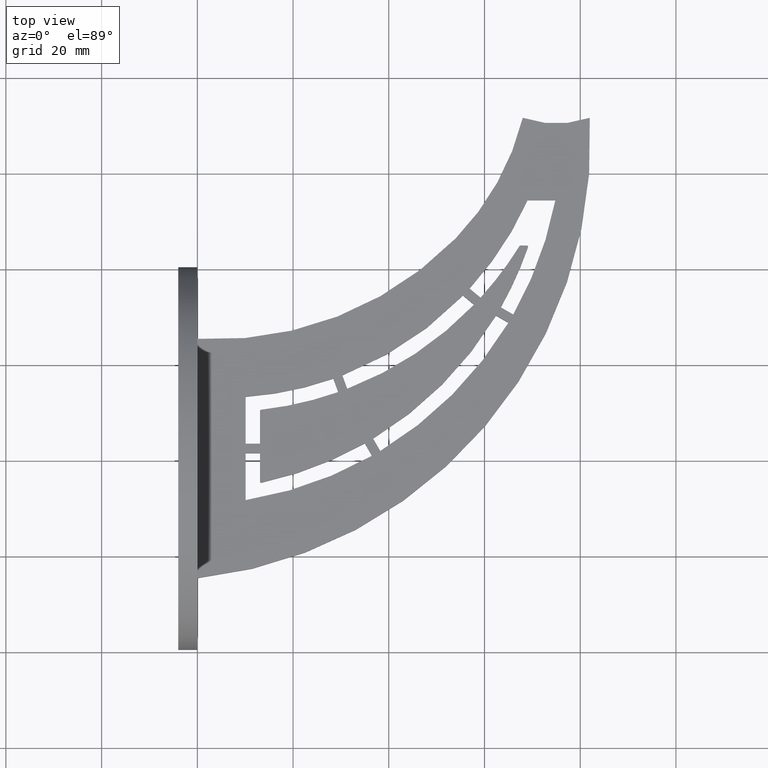
[diagram: clean part render]
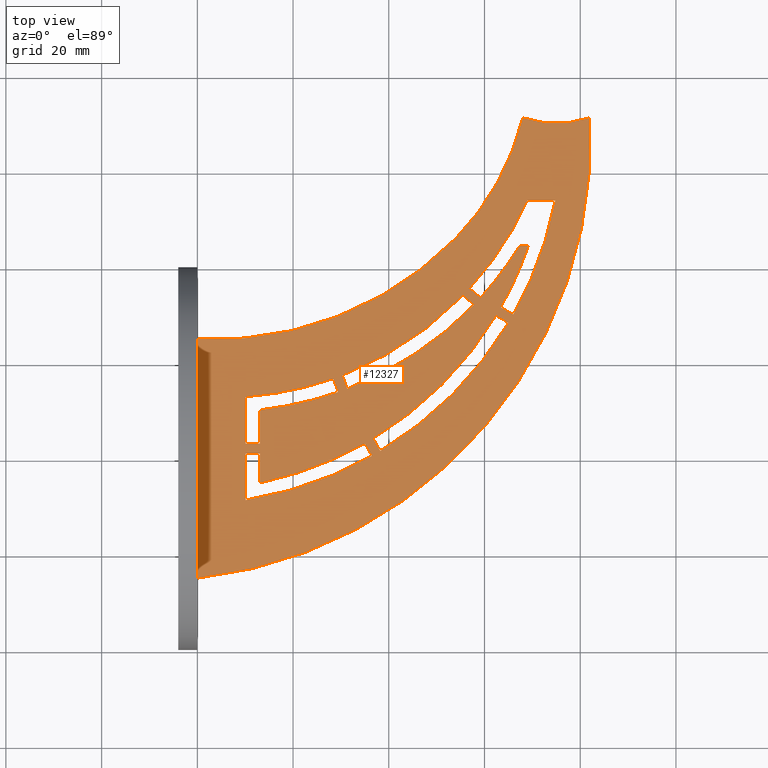
[diagram: same view with one face highlighted and labeled with its STEP entity id]
A machine part, top view. The second image highlights one B-rep face of the part: STEP entity #12327.
In plain terms, the highlighted planar face has unit normal (-0, 0, 1).
Its self-contained STEP definition (entity closure, byte-faithful):
#22 = LINE ( 'NONE', #11182, #9913 ) ;
#104 = CIRCLE ( 'NONE', #9600, 78.50000000000000000 ) ;
#159 = CARTESIAN_POINT ( 'NONE',  ( 13.35000000000025011, 9.933913978657852084, 2.000000000000000000 ) ) ;
#244 = EDGE_CURVE ( 'NONE', #7378, #643, #3690, .T. ) ;
#289 = LINE ( 'NONE', #1100, #12789 ) ;
#306 = ORIENTED_EDGE ( 'NONE', *, *, #6075, .T. ) ;
#407 = AXIS2_PLACEMENT_3D ( 'NONE', #3707, #1597, #13023 ) ;
#453 = VECTOR ( 'NONE', #2502, 999.9999999999998863 ) ;
#458 = AXIS2_PLACEMENT_3D ( 'NONE', #9903, #5889, #6931 ) ;
#484 = LINE ( 'NONE', #4370, #5680 ) ;
#509 = EDGE_CURVE ( 'NONE', #8082, #7496, #9846, .T. ) ;
#592 = DIRECTION ( 'NONE',  ( -0.000000000000000000, 0.000000000000000000, 1.000000000000000000 ) ) ;
#633 = CARTESIAN_POINT ( 'NONE',  ( 74.99999999999998579, 91.20000000000000284, 2.000000000000000000 ) ) ;
#643 = VERTEX_POINT ( 'NONE', #11757 ) ;
#649 = DIRECTION ( 'NONE',  ( -0.000000000000000000, 0.000000000000000000, 1.000000000000000000 ) ) ;
#677 = DIRECTION ( 'NONE',  ( -0.000000000000000000, 0.000000000000000000, 1.000000000000000000 ) ) ;
#716 = DIRECTION ( 'NONE',  ( -0.000000000000000000, 0.000000000000000000, 1.000000000000000000 ) ) ;
#935 = VERTEX_POINT ( 'NONE', #1446 ) ;
#1100 = CARTESIAN_POINT ( 'NONE',  ( 30.43871474060331650, 11.20269202076643822, 2.000000000000000000 ) ) ;
#1176 = VERTEX_POINT ( 'NONE', #9939 ) ;
#1182 = VERTEX_POINT ( 'NONE', #10863 ) ;
#1211 = CARTESIAN_POINT ( 'NONE',  ( 14.61404249810564338, 84.41547426875771976, 2.000000000000000000 ) ) ;
#1221 = VERTEX_POINT ( 'NONE', #6142 ) ;
#1229 = AXIS2_PLACEMENT_3D ( 'NONE', #8597, #592, #1757 ) ;
#1272 = FACE_BOUND ( 'NONE', #11613, .T. ) ;
#1279 = VERTEX_POINT ( 'NONE', #9320 ) ;
#1301 = VERTEX_POINT ( 'NONE', #9599 ) ;
#1318 = VERTEX_POINT ( 'NONE', #12718 ) ;
#1446 = CARTESIAN_POINT ( 'NONE',  ( 62.40149663089107435, 29.86616344181055283, 2.000000000000000000 ) ) ;
#1462 = VECTOR ( 'NONE', #6392, 1000.000000000000114 ) ;
#1483 = VERTEX_POINT ( 'NONE', #11898 ) ;
#1500 = DIRECTION ( 'NONE',  ( 0.7683469671252344257, -0.6400335445189211381, 0.000000000000000000 ) ) ;
#1545 = EDGE_CURVE ( 'NONE', #1318, #935, #10309, .T. ) ;
#1555 = CARTESIAN_POINT ( 'NONE',  ( 28.41691154838158795, 16.69611186267583491, 2.000000000000000000 ) ) ;
#1597 = DIRECTION ( 'NONE',  ( -0.000000000000000000, 0.000000000000000000, 1.000000000000000000 ) ) ;
#1605 = FACE_BOUND ( 'NONE', #8514, .T. ) ;
#1644 = VECTOR ( 'NONE', #7174, 1000.000000000000000 ) ;
#1757 = DIRECTION ( 'NONE',  ( 1.000000000000000000, 0.000000000000000000, 0.000000000000000000 ) ) ;
#1856 = CARTESIAN_POINT ( 'NONE',  ( 68.85196653942389844, 44.50000000000000000, 2.000000000000000000 ) ) ;
#1936 = AXIS2_PLACEMENT_3D ( 'NONE', #1211, #8611, #7494 ) ;
#2001 = ORIENTED_EDGE ( 'NONE', *, *, #12408, .F. ) ;
#2033 = CARTESIAN_POINT ( 'NONE',  ( 81.99999999999997158, 71.18900302333739205, 2.000000000000000000 ) ) ;
#2037 = DIRECTION ( 'NONE',  ( 1.000000000000000000, 0.000000000000000000, 0.000000000000000000 ) ) ;
#2106 = VERTEX_POINT ( 'NONE', #6904 ) ;
#2304 = EDGE_CURVE ( 'NONE', #9242, #12832, #5115, .T. ) ;
#2371 = CARTESIAN_POINT ( 'NONE',  ( 5.180452133363093736, 82.72691493104838401, 2.000000000000000000 ) ) ;
#2427 = LINE ( 'NONE', #13392, #1644 ) ;
#2444 = ORIENTED_EDGE ( 'NONE', *, *, #3830, .T. ) ;
#2502 = DIRECTION ( 'NONE',  ( 0.3453912201917184177, -0.9384587923902019124, 0.000000000000000000 ) ) ;
#2504 = CARTESIAN_POINT ( 'NONE',  ( -2.274320155918185815, 68.81855391245915143, 2.000000000000000000 ) ) ;
#2507 = ORIENTED_EDGE ( 'NONE', *, *, #509, .T. ) ;
#2552 = EDGE_CURVE ( 'NONE', #1176, #5223, #7384, .T. ) ;
#2565 = CARTESIAN_POINT ( 'NONE',  ( -2.274320155918185815, 68.81855391245915143, 2.000000000000000000 ) ) ;
#2642 = CARTESIAN_POINT ( 'NONE',  ( 3.879352446742994065, 94.89242179660072907, 2.000000000000000000 ) ) ;
#2652 = CARTESIAN_POINT ( 'NONE',  ( 69.08826649521368779, 44.16837689730377292, 2.000000000000000000 ) ) ;
#2683 = DIRECTION ( 'NONE',  ( -0.000000000000000000, 0.000000000000000000, 1.000000000000000000 ) ) ;
#2751 = ORIENTED_EDGE ( 'NONE', *, *, #6838, .T. ) ;
#2763 = CARTESIAN_POINT ( 'NONE',  ( 5.180452133363093736, 82.72691493104838401, 2.000000000000000000 ) ) ;
#2797 = DIRECTION ( 'NONE',  ( 1.000000000000000000, 0.000000000000000000, 0.000000000000000000 ) ) ;
#2837 = VERTEX_POINT ( 'NONE', #9109 ) ;
#2928 = ORIENTED_EDGE ( 'NONE', *, *, #8837, .F. ) ;
#2945 = DIRECTION ( 'NONE',  ( -0.000000000000000000, 0.000000000000000000, 1.000000000000000000 ) ) ;
#3131 = AXIS2_PLACEMENT_3D ( 'NONE', #2504, #9746, #3553 ) ;
#3191 = FACE_BOUND ( 'NONE', #6525, .T. ) ;
#3256 = ORIENTED_EDGE ( 'NONE', *, *, #13352, .F. ) ;
#3282 = ORIENTED_EDGE ( 'NONE', *, *, #244, .F. ) ;
#3420 = DIRECTION ( 'NONE',  ( -0.000000000000000000, 0.000000000000000000, 1.000000000000000000 ) ) ;
#3428 = ORIENTED_EDGE ( 'NONE', *, *, #11032, .F. ) ;
#3553 = DIRECTION ( 'NONE',  ( 1.000000000000000000, 0.000000000000000000, 0.000000000000000000 ) ) ;
#3618 = ORIENTED_EDGE ( 'NONE', *, *, #9763, .F. ) ;
#3619 = EDGE_LOOP ( 'NONE', ( #11312, #10101, #11389, #8341, #4020 ) ) ;
#3643 = CARTESIAN_POINT ( 'NONE',  ( 32.31563232537948238, 11.89347446114490836, 2.000000000000000000 ) ) ;
#3690 = CIRCLE ( 'NONE', #1229, 72.99999999999998579 ) ;
#3707 = CARTESIAN_POINT ( 'NONE',  ( 0.000000000000000000, 0.000000000000000000, 2.000000000000000000 ) ) ;
#3789 = CARTESIAN_POINT ( 'NONE',  ( 66.00873501796485243, 30.09292446476082361, 2.000000000000000000 ) ) ;
#3830 = EDGE_CURVE ( 'NONE', #5907, #1318, #12091, .T. ) ;
#3884 = CARTESIAN_POINT ( 'NONE',  ( 63.41057880476433439, 31.59297065384887659, 2.000000000000000000 ) ) ;
#4020 = ORIENTED_EDGE ( 'NONE', *, *, #5819, .F. ) ;
#4075 = CIRCLE ( 'NONE', #12892, 75.50000000277351830 ) ;
#4119 = DIRECTION ( 'NONE',  ( 0.000000000000000000, 1.000000000000000000, -0.000000000000000000 ) ) ;
#4200 = CIRCLE ( 'NONE', #8529, 73.00000000000001421 ) ;
#4242 = LINE ( 'NONE', #10777, #9104 ) ;
#4257 = DIRECTION ( 'NONE',  ( -0.000000000000000000, 0.000000000000000000, 1.000000000000000000 ) ) ;
#4311 = VERTEX_POINT ( 'NONE', #11109 ) ;
#4317 = CARTESIAN_POINT ( 'NONE',  ( 13.10000000000004228, 4.898666193980483286E-13, 2.000000000000000000 ) ) ;
#4327 = LINE ( 'NONE', #4317, #12148 ) ;
#4343 = LINE ( 'NONE', #8729, #10192 ) ;
#4357 = ORIENTED_EDGE ( 'NONE', *, *, #13173, .F. ) ;
#4360 = CARTESIAN_POINT ( 'NONE',  ( 13.10000000000000142, 1.100000000000000311, 2.000000000000000000 ) ) ;
#4370 = CARTESIAN_POINT ( 'NONE',  ( 13.09999999999989306, -4.356155149773243477E-13, 2.000000000000000000 ) ) ;
#4385 = CARTESIAN_POINT ( 'NONE',  ( 56.87206340631109924, 35.52546025000670937, 2.000000000000000000 ) ) ;
#4583 = DIRECTION ( 'NONE',  ( 1.000000000000000000, -5.174308923711817413E-15, 0.000000000000000000 ) ) ;
#4657 = ORIENTED_EDGE ( 'NONE', *, *, #7781, .F. ) ;
#4694 = CARTESIAN_POINT ( 'NONE',  ( 67.51093839320922996, 44.24999999999997868, 2.000000000000000000 ) ) ;
#4695 = VERTEX_POINT ( 'NONE', #6681 ) ;
#4702 = CARTESIAN_POINT ( 'NONE',  ( 36.49999999999999289, 0.5631358385336567851, 2.000000000000000000 ) ) ;
#4712 = EDGE_CURVE ( 'NONE', #6776, #6154, #10428, .T. ) ;
#4735 = DIRECTION ( 'NONE',  ( -0.000000000000000000, 0.000000000000000000, 1.000000000000000000 ) ) ;
#4814 = VECTOR ( 'NONE', #8089, 1000.000000000000000 ) ;
#4844 = CIRCLE ( 'NONE', #7586, 91.99999999999938893 ) ;
#4854 = CIRCLE ( 'NONE', #5952, 70.00000000000002842 ) ;
#4873 = DIRECTION ( 'NONE',  ( 1.000000000000000000, 1.445602896647341382E-16, 0.000000000000000000 ) ) ;
#4912 = ORIENTED_EDGE ( 'NONE', *, *, #5326, .F. ) ;
#5070 = VERTEX_POINT ( 'NONE', #12018 ) ;
#5115 = CIRCLE ( 'NONE', #9448, 75.50000000277351830 ) ;
#5186 = ORIENTED_EDGE ( 'NONE', *, *, #13081, .T. ) ;
#5223 = VERTEX_POINT ( 'NONE', #10541 ) ;
#5232 = AXIS2_PLACEMENT_3D ( 'NONE', #2763, #5815, #5678 ) ;
#5248 = ORIENTED_EDGE ( 'NONE', *, *, #8628, .T. ) ;
#5326 = EDGE_CURVE ( 'NONE', #5888, #1483, #4242, .T. ) ;
#5396 = CARTESIAN_POINT ( 'NONE',  ( 10.09999999999999964, 3.100000000000001865, 2.000000000000000000 ) ) ;
#5410 = VECTOR ( 'NONE', #9825, 1000.000000000000114 ) ;
#5529 = CIRCLE ( 'NONE', #458, 69.99999999999998579 ) ;
#5546 = CARTESIAN_POINT ( 'NONE',  ( 38.22629435678329912, 1.573106303765562597, 2.000000000000000000 ) ) ;
#5557 = CIRCLE ( 'NONE', #1936, 55.00000000000000711 ) ;
#5678 = DIRECTION ( 'NONE',  ( 1.000000000000000000, 0.000000000000000000, 0.000000000000000000 ) ) ;
#5680 = VECTOR ( 'NONE', #7523, 1000.000000000000000 ) ;
#5695 = CARTESIAN_POINT ( 'NONE',  ( -2.274320155918185815, 68.81855391245915143, 2.000000000000000000 ) ) ;
#5698 = CIRCLE ( 'NONE', #6471, 78.49999999999998579 ) ;
#5724 = AXIS2_PLACEMENT_3D ( 'NONE', #633, #677, #9995 ) ;
#5759 = DIRECTION ( 'NONE',  ( 0.7683469671252389777, -0.6400335445189156980, 0.000000000000000000 ) ) ;
#5774 = AXIS2_PLACEMENT_3D ( 'NONE', #11148, #9134, #2037 ) ;
#5815 = DIRECTION ( 'NONE',  ( -0.000000000000000000, 0.000000000000000000, 1.000000000000000000 ) ) ;
#5819 = EDGE_CURVE ( 'NONE', #8285, #2106, #5557, .T. ) ;
#5820 = DIRECTION ( 'NONE',  ( 1.000000000000000000, 0.000000000000000000, 0.000000000000000000 ) ) ;
#5888 = VERTEX_POINT ( 'NONE', #4385 ) ;
#5889 = DIRECTION ( 'NONE',  ( -0.000000000000000000, 0.000000000000000000, 1.000000000000000000 ) ) ;
#5907 = VERTEX_POINT ( 'NONE', #5546 ) ;
#5952 = AXIS2_PLACEMENT_3D ( 'NONE', #9011, #6853, #7874 ) ;
#5993 = DIRECTION ( 'NONE',  ( 1.000000000000000000, 0.000000000000000000, 0.000000000000000000 ) ) ;
#6021 = EDGE_CURVE ( 'NONE', #5907, #12602, #10922, .T. ) ;
#6075 = EDGE_CURVE ( 'NONE', #5070, #6154, #4075, .T. ) ;
#6136 = EDGE_CURVE ( 'NONE', #935, #12602, #7167, .T. ) ;
#6142 = CARTESIAN_POINT ( 'NONE',  ( 57.81112312110035845, 32.14023218370323320, 2.000000000000000000 ) ) ;
#6154 = VERTEX_POINT ( 'NONE', #6990 ) ;
#6161 = CIRCLE ( 'NONE', #12034, 0.2500000000000366374 ) ;
#6189 = ORIENTED_EDGE ( 'NONE', *, *, #11816, .F. ) ;
#6333 = EDGE_CURVE ( 'NONE', #12832, #12522, #11072, .T. ) ;
#6392 = DIRECTION ( 'NONE',  ( 0.8660254037844340447, -0.5000000000000078826, 0.000000000000000000 ) ) ;
#6446 = DIRECTION ( 'NONE',  ( -3.739439842733181748E-14, 1.000000000000000000, 0.000000000000000000 ) ) ;
#6469 = DIRECTION ( 'NONE',  ( 1.000000000000000000, 0.000000000000000000, 0.000000000000000000 ) ) ;
#6471 = AXIS2_PLACEMENT_3D ( 'NONE', #12864, #8487, #9613 ) ;
#6525 = EDGE_LOOP ( 'NONE', ( #3256, #6189, #5248, #9755 ) ) ;
#6553 = DIRECTION ( 'NONE',  ( 1.000000000000000000, 0.000000000000000000, 0.000000000000000000 ) ) ;
#6651 = CARTESIAN_POINT ( 'NONE',  ( 2.302567471051777078E-13, 44.50000000000035527, 2.000000000000000000 ) ) ;
#6661 = ORIENTED_EDGE ( 'NONE', *, *, #7726, .F. ) ;
#6681 = CARTESIAN_POINT ( 'NONE',  ( 1.998587412948803633E-12, 24.99999999999992539, 2.000000000000000000 ) ) ;
#6743 = ORIENTED_EDGE ( 'NONE', *, *, #9391, .F. ) ;
#6776 = VERTEX_POINT ( 'NONE', #4702 ) ;
#6812 = CARTESIAN_POINT ( 'NONE',  ( -4.481368979606760207E-16, 3.100000000000000977, 2.000000000000000000 ) ) ;
#6838 = EDGE_CURVE ( 'NONE', #10904, #1301, #22, .T. ) ;
#6853 = DIRECTION ( 'NONE',  ( -0.000000000000000000, 0.000000000000000000, 1.000000000000000000 ) ) ;
#6904 = CARTESIAN_POINT ( 'NONE',  ( 68.00000000000000000, 71.18900302333739205, 2.000000000000000000 ) ) ;
#6916 = DIRECTION ( 'NONE',  ( -0.000000000000000000, 0.000000000000000000, 1.000000000000000000 ) ) ;
#6931 = DIRECTION ( 'NONE',  ( 1.000000000000000000, 0.000000000000000000, 0.000000000000000000 ) ) ;
#6990 = CARTESIAN_POINT ( 'NONE',  ( 34.99996197542167664, 3.161277910388546442, 2.000000000000000000 ) ) ;
#7167 = LINE ( 'NONE', #8999, #12057 ) ;
#7174 = DIRECTION ( 'NONE',  ( 1.000000000000000000, 0.000000000000000000, 0.000000000000000000 ) ) ;
#7251 = VECTOR ( 'NONE', #4873, 1000.000000000000000 ) ;
#7270 = VERTEX_POINT ( 'NONE', #7824 ) ;
#7378 = VERTEX_POINT ( 'NONE', #12377 ) ;
#7384 = LINE ( 'NONE', #9323, #7873 ) ;
#7391 = ORIENTED_EDGE ( 'NONE', *, *, #1545, .T. ) ;
#7436 = LINE ( 'NONE', #9293, #1462 ) ;
#7494 = DIRECTION ( 'NONE',  ( 1.000000000000000000, 0.000000000000000000, 0.000000000000000000 ) ) ;
#7496 = VERTEX_POINT ( 'NONE', #10678 ) ;
#7514 = ORIENTED_EDGE ( 'NONE', *, *, #4712, .F. ) ;
#7523 = DIRECTION ( 'NONE',  ( 3.325309274636090619E-14, 1.000000000000000000, 0.000000000000000000 ) ) ;
#7586 = AXIS2_PLACEMENT_3D ( 'NONE', #10138, #11140, #5993 ) ;
#7597 = EDGE_CURVE ( 'NONE', #7496, #12329, #5529, .T. ) ;
#7617 = ORIENTED_EDGE ( 'NONE', *, *, #6136, .T. ) ;
#7726 = EDGE_CURVE ( 'NONE', #12359, #1301, #5698, .T. ) ;
#7781 = EDGE_CURVE ( 'NONE', #1483, #9386, #4200, .T. ) ;
#7793 = ORIENTED_EDGE ( 'NONE', *, *, #9054, .T. ) ;
#7798 = AXIS2_PLACEMENT_3D ( 'NONE', #2642, #649, #9745 ) ;
#7824 = CARTESIAN_POINT ( 'NONE',  ( 55.50000000000000000, 34.06539931041406533, 2.000000000000000000 ) ) ;
#7856 = DIRECTION ( 'NONE',  ( 1.000000000000000000, 0.000000000000000000, 0.000000000000000000 ) ) ;
#7873 = VECTOR ( 'NONE', #4119, 1000.000000000000000 ) ;
#7874 = DIRECTION ( 'NONE',  ( 1.000000000000000000, 0.000000000000000000, 0.000000000000000000 ) ) ;
#7931 = CARTESIAN_POINT ( 'NONE',  ( -2.274320155918185815, 68.81855391245915143, 2.000000000000000000 ) ) ;
#8016 = CARTESIAN_POINT ( 'NONE',  ( -2.274320155918185815, 68.81855391245915143, 2.000000000000000000 ) ) ;
#8019 = ORIENTED_EDGE ( 'NONE', *, *, #6333, .T. ) ;
#8082 = VERTEX_POINT ( 'NONE', #5396 ) ;
#8089 = DIRECTION ( 'NONE',  ( -1.770125995894700956E-16, 1.000000000000000000, 0.000000000000000000 ) ) ;
#8121 = ORIENTED_EDGE ( 'NONE', *, *, #12203, .T. ) ;
#8153 = CARTESIAN_POINT ( 'NONE',  ( 5.180452133363093736, 82.72691493104838401, 2.000000000000000000 ) ) ;
#8195 = EDGE_CURVE ( 'NONE', #5888, #10904, #10362, .T. ) ;
#8230 = CIRCLE ( 'NONE', #7798, 69.99999999999997158 ) ;
#8285 = VERTEX_POINT ( 'NONE', #13158 ) ;
#8341 = ORIENTED_EDGE ( 'NONE', *, *, #12325, .F. ) ;
#8410 = VERTEX_POINT ( 'NONE', #4360 ) ;
#8487 = DIRECTION ( 'NONE',  ( -0.000000000000000000, 0.000000000000000000, 1.000000000000000000 ) ) ;
#8514 = EDGE_LOOP ( 'NONE', ( #11700, #8019, #2928, #11847, #4657, #4912, #8933, #2751, #6661, #3618 ) ) ;
#8529 = AXIS2_PLACEMENT_3D ( 'NONE', #2371, #3420, #6553 ) ;
#8557 = CIRCLE ( 'NONE', #10020, 0.2500000000000279776 ) ;
#8597 = CARTESIAN_POINT ( 'NONE',  ( 5.180452133363093736, 82.72691493104838401, 2.000000000000000000 ) ) ;
#8611 = DIRECTION ( 'NONE',  ( -0.000000000000000000, 0.000000000000000000, 1.000000000000000000 ) ) ;
#8628 = EDGE_CURVE ( 'NONE', #2837, #7270, #4854, .T. ) ;
#8651 = EDGE_CURVE ( 'NONE', #5223, #8410, #2427, .T. ) ;
#8653 = CARTESIAN_POINT ( 'NONE',  ( 67.51093839320922996, 44.50000000000000711, 2.000000000000000000 ) ) ;
#8676 = EDGE_LOOP ( 'NONE', ( #2444, #7391, #7617, #9057 ) ) ;
#8703 = FACE_OUTER_BOUND ( 'NONE', #3619, .T. ) ;
#8729 = CARTESIAN_POINT ( 'NONE',  ( 39.48745065706642521, 47.40386376884318764, 2.000000000000000000 ) ) ;
#8740 = DIRECTION ( 'NONE',  ( 1.000000000000000000, 0.000000000000000000, 0.000000000000000000 ) ) ;
#8803 = EDGE_CURVE ( 'NONE', #13177, #4695, #11687, .T. ) ;
#8837 = EDGE_CURVE ( 'NONE', #9096, #12522, #10694, .T. ) ;
#8843 = DIRECTION ( 'NONE',  ( -0.000000000000000000, 0.000000000000000000, 1.000000000000000000 ) ) ;
#8909 = PLANE ( 'NONE',  #407 ) ;
#8912 = VECTOR ( 'NONE', #10857, 1000.000000000000000 ) ;
#8927 = ORIENTED_EDGE ( 'NONE', *, *, #8651, .T. ) ;
#8933 = ORIENTED_EDGE ( 'NONE', *, *, #8195, .T. ) ;
#8979 = DIRECTION ( 'NONE',  ( 1.000000000000000000, 0.000000000000000000, 0.000000000000000000 ) ) ;
#8999 = CARTESIAN_POINT ( 'NONE',  ( 28.53280228481606784, 49.42026323961830059, 2.000000000000000000 ) ) ;
#9011 = CARTESIAN_POINT ( 'NONE',  ( 5.180452133363093736, 82.72691493104838401, 2.000000000000000000 ) ) ;
#9022 = LINE ( 'NONE', #3643, #453 ) ;
#9028 = CARTESIAN_POINT ( 'NONE',  ( 10.09999999999999964, 1.787827255853647886E-15, 2.000000000000000000 ) ) ;
#9054 = EDGE_CURVE ( 'NONE', #1182, #5070, #6161, .T. ) ;
#9057 = ORIENTED_EDGE ( 'NONE', *, *, #6021, .F. ) ;
#9096 = VERTEX_POINT ( 'NONE', #8653 ) ;
#9104 = VECTOR ( 'NONE', #1500, 1000.000000000000114 ) ;
#9109 = CARTESIAN_POINT ( 'NONE',  ( 30.29382913315705039, 17.38689430305788974, 2.000000000000000000 ) ) ;
#9134 = DIRECTION ( 'NONE',  ( -0.000000000000000000, 0.000000000000000000, 1.000000000000000000 ) ) ;
#9242 = VERTEX_POINT ( 'NONE', #3884 ) ;
#9247 = EDGE_CURVE ( 'NONE', #13177, #10538, #4844, .T. ) ;
#9293 = CARTESIAN_POINT ( 'NONE',  ( 29.53280228481641956, 51.15231404718719688, 2.000000000000000000 ) ) ;
#9320 = CARTESIAN_POINT ( 'NONE',  ( 13.10000000000022169, 9.933913978657852084, 2.000000000000000000 ) ) ;
#9323 = CARTESIAN_POINT ( 'NONE',  ( 10.09999999999999964, 0.000000000000000000, 2.000000000000000000 ) ) ;
#9386 = VERTEX_POINT ( 'NONE', #11701 ) ;
#9391 = EDGE_CURVE ( 'NONE', #13044, #1279, #484, .T. ) ;
#9417 = CARTESIAN_POINT ( 'NONE',  ( 1.110223024625135740E-12, -3.944304526105082560E-26, 2.000000000000000000 ) ) ;
#9436 = EDGE_CURVE ( 'NONE', #7270, #1221, #4343, .T. ) ;
#9448 = AXIS2_PLACEMENT_3D ( 'NONE', #2565, #4735, #12010 ) ;
#9599 = CARTESIAN_POINT ( 'NONE',  ( 74.81433309437242940, 54.00000000000000711, 2.000000000000000000 ) ) ;
#9600 = AXIS2_PLACEMENT_3D ( 'NONE', #5695, #8843, #13000 ) ;
#9613 = DIRECTION ( 'NONE',  ( 1.000000000000000000, 0.000000000000000000, 0.000000000000000000 ) ) ;
#9745 = DIRECTION ( 'NONE',  ( 1.000000000000000000, 0.000000000000000000, 0.000000000000000000 ) ) ;
#9746 = DIRECTION ( 'NONE',  ( -0.000000000000000000, 0.000000000000000000, 1.000000000000000000 ) ) ;
#9755 = ORIENTED_EDGE ( 'NONE', *, *, #9436, .T. ) ;
#9763 = EDGE_CURVE ( 'NONE', #9242, #12359, #7436, .T. ) ;
#9825 = DIRECTION ( 'NONE',  ( -0.5000000000000005551, 0.8660254037844382635, 0.000000000000000000 ) ) ;
#9826 = CIRCLE ( 'NONE', #13354, 0.2500000000000296985 ) ;
#9846 = LINE ( 'NONE', #9028, #4814 ) ;
#9903 = CARTESIAN_POINT ( 'NONE',  ( 5.180452133363093736, 82.72691493104838401, 2.000000000000000000 ) ) ;
#9913 = VECTOR ( 'NONE', #2797, 1000.000000000000000 ) ;
#9939 = CARTESIAN_POINT ( 'NONE',  ( 10.09999999999999964, -8.700000000000001066, 2.000000000000000000 ) ) ;
#9995 = DIRECTION ( 'NONE',  ( 1.000000000000000000, 0.000000000000000000, 0.000000000000000000 ) ) ;
#10004 = FACE_BOUND ( 'NONE', #11845, .T. ) ;
#10020 = AXIS2_PLACEMENT_3D ( 'NONE', #4694, #716, #8979 ) ;
#10101 = ORIENTED_EDGE ( 'NONE', *, *, #8803, .F. ) ;
#10138 = CARTESIAN_POINT ( 'NONE',  ( -9.878794471127335441, 66.46807869304582539, 2.000000000000000000 ) ) ;
#10189 = DIRECTION ( 'NONE',  ( 1.000000000000000000, 0.000000000000000000, 0.000000000000000000 ) ) ;
#10192 = VECTOR ( 'NONE', #5759, 1000.000000000000114 ) ;
#10259 = CARTESIAN_POINT ( 'NONE',  ( 65.00000000000001421, 28.36591682216534593, 2.000000000000000000 ) ) ;
#10309 = CIRCLE ( 'NONE', #10871, 75.50000000277350409 ) ;
#10362 = CIRCLE ( 'NONE', #5232, 70.00000000000000000 ) ;
#10428 = LINE ( 'NONE', #10789, #5410 ) ;
#10454 = DIRECTION ( 'NONE',  ( 0.3453912201918108438, -0.9384587923901678286, 0.000000000000000000 ) ) ;
#10538 = VERTEX_POINT ( 'NONE', #2033 ) ;
#10541 = CARTESIAN_POINT ( 'NONE',  ( 10.09999999999999964, 1.100000000000000311, 2.000000000000000000 ) ) ;
#10574 = CARTESIAN_POINT ( 'NONE',  ( 13.09999999999999609, 3.100000000000002309, 2.000000000000000000 ) ) ;
#10662 = LINE ( 'NONE', #6812, #7251 ) ;
#10672 = DIRECTION ( 'NONE',  ( -0.5000000000000017764, 0.8660254037844377084, 0.000000000000000000 ) ) ;
#10678 = CARTESIAN_POINT ( 'NONE',  ( 10.09999999999999787, 12.90000000000000391, 2.000000000000000000 ) ) ;
#10694 = LINE ( 'NONE', #6651, #12335 ) ;
#10777 = CARTESIAN_POINT ( 'NONE',  ( 40.76751774610470846, 48.94055770309351772, 2.000000000000000000 ) ) ;
#10789 = CARTESIAN_POINT ( 'NONE',  ( 27.61884497097577551, 15.94574757869942871, 2.000000000000000000 ) ) ;
#10842 = CARTESIAN_POINT ( 'NONE',  ( 13.35000000000025189, -4.791520942025062624, 2.000000000000000000 ) ) ;
#10857 = DIRECTION ( 'NONE',  ( 3.552713678800588651E-14, 1.000000000000000000, 0.000000000000000000 ) ) ;
#10863 = CARTESIAN_POINT ( 'NONE',  ( 13.10000000000022169, -4.791520942025062624, 2.000000000000000000 ) ) ;
#10866 = CARTESIAN_POINT ( 'NONE',  ( 29.35089577854461496, 16.94574757869946424, 2.000000000000000000 ) ) ;
#10871 = AXIS2_PLACEMENT_3D ( 'NONE', #7931, #2683, #5820 ) ;
#10904 = VERTEX_POINT ( 'NONE', #12268 ) ;
#10922 = CIRCLE ( 'NONE', #3131, 78.49999999999998579 ) ;
#11032 = EDGE_CURVE ( 'NONE', #1182, #8410, #4327, .T. ) ;
#11072 = CIRCLE ( 'NONE', #5774, 0.2500000000000140998 ) ;
#11092 = ORIENTED_EDGE ( 'NONE', *, *, #7597, .T. ) ;
#11109 = CARTESIAN_POINT ( 'NONE',  ( 31.33010419547926872, 14.57124240828424711, 2.000000000000000000 ) ) ;
#11140 = DIRECTION ( 'NONE',  ( -0.000000000000000000, 0.000000000000000000, 1.000000000000000000 ) ) ;
#11148 = CARTESIAN_POINT ( 'NONE',  ( 68.85196653942389844, 44.24999999999997868, 2.000000000000000000 ) ) ;
#11178 = EDGE_CURVE ( 'NONE', #9096, #9386, #8557, .T. ) ;
#11182 = CARTESIAN_POINT ( 'NONE',  ( 0.000000000000000000, 54.00000000000000711, 2.000000000000000000 ) ) ;
#11306 = CIRCLE ( 'NONE', #5724, 21.19999999999999574 ) ;
#11312 = ORIENTED_EDGE ( 'NONE', *, *, #11882, .F. ) ;
#11389 = ORIENTED_EDGE ( 'NONE', *, *, #9247, .T. ) ;
#11563 = ORIENTED_EDGE ( 'NONE', *, *, #2552, .T. ) ;
#11613 = EDGE_LOOP ( 'NONE', ( #11563, #8927, #3428, #7793, #306, #7514, #4357 ) ) ;
#11687 = LINE ( 'NONE', #9417, #8912 ) ;
#11700 = ORIENTED_EDGE ( 'NONE', *, *, #2304, .T. ) ;
#11701 = CARTESIAN_POINT ( 'NONE',  ( 67.29820635819267238, 44.38132052877488576, 2.000000000000000000 ) ) ;
#11757 = CARTESIAN_POINT ( 'NONE',  ( 29.45318661070406918, 13.88045996790233794, 2.000000000000000000 ) ) ;
#11773 = VECTOR ( 'NONE', #10672, 999.9999999999998863 ) ;
#11804 = CIRCLE ( 'NONE', #12937, 73.00000000000001421 ) ;
#11816 = EDGE_CURVE ( 'NONE', #2837, #4311, #9022, .T. ) ;
#11845 = EDGE_LOOP ( 'NONE', ( #3282, #5186, #6743, #2001, #2507, #11092, #8121 ) ) ;
#11847 = ORIENTED_EDGE ( 'NONE', *, *, #11178, .T. ) ;
#11882 = EDGE_CURVE ( 'NONE', #4695, #8285, #8230, .T. ) ;
#11898 = CARTESIAN_POINT ( 'NONE',  ( 59.17939240146306901, 33.60345363278309350, 2.000000000000000000 ) ) ;
#11986 = FACE_BOUND ( 'NONE', #8676, .T. ) ;
#12010 = DIRECTION ( 'NONE',  ( 1.000000000000000000, 0.000000000000000000, 0.000000000000000000 ) ) ;
#12018 = CARTESIAN_POINT ( 'NONE',  ( 13.40190804038342876, -5.036072685718692377, 2.000000000000000000 ) ) ;
#12034 = AXIS2_PLACEMENT_3D ( 'NONE', #10842, #12988, #8740 ) ;
#12057 = VECTOR ( 'NONE', #12079, 1000.000000000000000 ) ;
#12079 = DIRECTION ( 'NONE',  ( 0.8660254037844365982, -0.5000000000000036637, 0.000000000000000000 ) ) ;
#12091 = LINE ( 'NONE', #10866, #11773 ) ;
#12148 = VECTOR ( 'NONE', #6446, 1000.000000000000000 ) ;
#12203 = EDGE_CURVE ( 'NONE', #12329, #643, #289, .T. ) ;
#12268 = CARTESIAN_POINT ( 'NONE',  ( 69.01433309437241803, 54.00000000000000711, 2.000000000000000000 ) ) ;
#12325 = EDGE_CURVE ( 'NONE', #2106, #10538, #11306, .T. ) ;
#12327 = ADVANCED_FACE ( 'NONE', ( #1272, #8703, #10004, #11986, #3191, #1605 ), #8909, .T. ) ;
#12329 = VERTEX_POINT ( 'NONE', #1555 ) ;
#12335 = VECTOR ( 'NONE', #4583, 1000.000000000000000 ) ;
#12359 = VERTEX_POINT ( 'NONE', #3789 ) ;
#12377 = CARTESIAN_POINT ( 'NONE',  ( 13.32211758407314939, 10.18235425494592938, 2.000000000000000000 ) ) ;
#12408 = EDGE_CURVE ( 'NONE', #8082, #13044, #10662, .T. ) ;
#12522 = VERTEX_POINT ( 'NONE', #1856 ) ;
#12602 = VERTEX_POINT ( 'NONE', #10259 ) ;
#12718 = CARTESIAN_POINT ( 'NONE',  ( 36.72602755165311095, 4.171644635160063785, 2.000000000000000000 ) ) ;
#12789 = VECTOR ( 'NONE', #10454, 1000.000000000000114 ) ;
#12832 = VERTEX_POINT ( 'NONE', #2652 ) ;
#12864 = CARTESIAN_POINT ( 'NONE',  ( -2.274320155918185815, 68.81855391245915143, 2.000000000000000000 ) ) ;
#12892 = AXIS2_PLACEMENT_3D ( 'NONE', #8016, #6916, #7856 ) ;
#12937 = AXIS2_PLACEMENT_3D ( 'NONE', #8153, #2945, #10189 ) ;
#12954 = CARTESIAN_POINT ( 'NONE',  ( -1.998139615876600116E-12, -24.99999999999961986, 2.000000000000000000 ) ) ;
#12988 = DIRECTION ( 'NONE',  ( -0.000000000000000000, 0.000000000000000000, 1.000000000000000000 ) ) ;
#13000 = DIRECTION ( 'NONE',  ( 1.000000000000000000, 0.000000000000000000, 0.000000000000000000 ) ) ;
#13023 = DIRECTION ( 'NONE',  ( 1.000000000000000000, 0.000000000000000000, 0.000000000000000000 ) ) ;
#13044 = VERTEX_POINT ( 'NONE', #10574 ) ;
#13081 = EDGE_CURVE ( 'NONE', #7378, #1279, #9826, .T. ) ;
#13158 = CARTESIAN_POINT ( 'NONE',  ( 53.97457268643530881, 45.99999999999996447, 2.000000000000000000 ) ) ;
#13173 = EDGE_CURVE ( 'NONE', #1176, #6776, #104, .T. ) ;
#13177 = VERTEX_POINT ( 'NONE', #12954 ) ;
#13352 = EDGE_CURVE ( 'NONE', #4311, #1221, #11804, .T. ) ;
#13354 = AXIS2_PLACEMENT_3D ( 'NONE', #159, #4257, #6469 ) ;
#13392 = CARTESIAN_POINT ( 'NONE',  ( 0.000000000000000000, 1.100000000000000311, 2.000000000000000000 ) ) ;